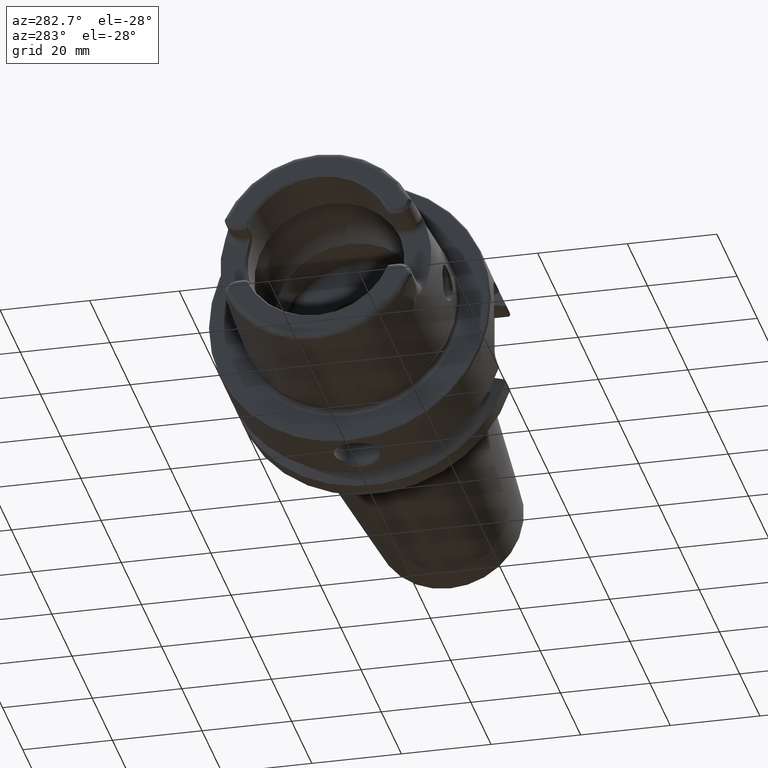
[diagram: clean part render]
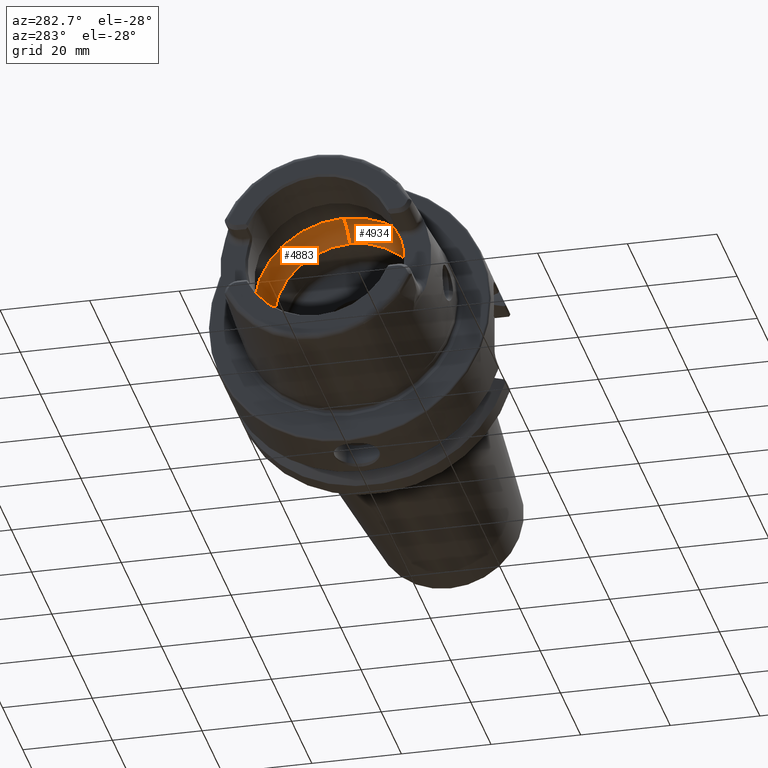
[diagram: same view with one multi-face feature highlighted, each face labeled with its STEP entity id]
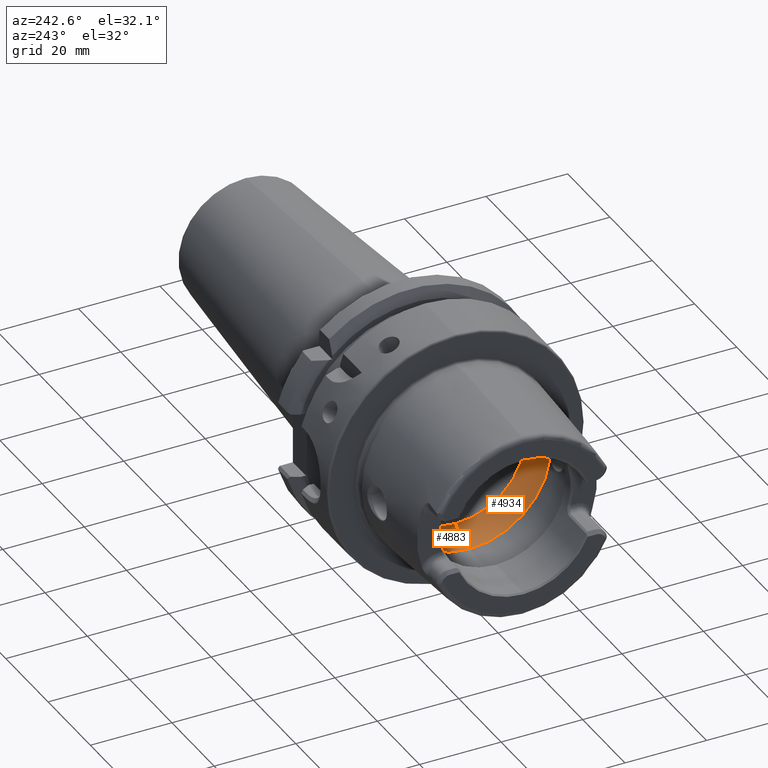
[diagram: same view with one multi-face feature highlighted, each face labeled with its STEP entity id]
A machine part, auxiliary view. The highlighted faces form ONE feature: a constant-radius fillet chain: 2 tangent blend faces with common blend radius 8.2014 mm. The faces share edges in the B-rep.
A second angle (auxiliary view) of the same feature is appended — it is thin or edge-on in the first view.
Their STEP definitions:
[1] entity #4934 (Torus):
#267=CARTESIAN_POINT('',(9.100685570619E-2,0.E0,0.E0));
#268=DIRECTION('',(1.E0,0.E0,0.E0));
#269=DIRECTION('',(0.E0,0.E0,1.E0));
#270=AXIS2_PLACEMENT_3D('',#267,#268,#269);
#1745=CARTESIAN_POINT('',(-6.25E0,-1.983683432405E1,-2.549509756796E0));
#1747=CARTESIAN_POINT('',(-6.25E0,-1.983683432405E1,2.549509756796E0));
#1763=CARTESIAN_POINT('',(-6.25E0,0.E0,0.E0));
#1764=DIRECTION('',(1.E0,0.E0,0.E0));
#1765=DIRECTION('',(0.E0,0.E0,1.E0));
#1766=AXIS2_PLACEMENT_3D('',#1763,#1764,#1765);
#1776=CARTESIAN_POINT('',(-6.25E0,0.E0,0.E0));
#1777=DIRECTION('',(1.E0,0.E0,0.E0));
#1778=DIRECTION('',(0.E0,-9.918417211620E-1,-1.274754884772E-1));
#1779=AXIS2_PLACEMENT_3D('',#1776,#1777,#1778);
#1781=CARTESIAN_POINT('',(-6.25E0,-1.983683432405E1,-2.549509756796E0));
#1782=CARTESIAN_POINT('',(-6.101283299350E0,-1.985745106764E1,
-2.389098161705E0));
#1783=CARTESIAN_POINT('',(-5.823011759718E0,-1.989111915045E1,
-2.033654081724E0));
#1784=CARTESIAN_POINT('',(-5.488290434370E0,-1.992204764600E1,
-1.383194941896E0));
#1785=CARTESIAN_POINT('',(-5.289411510405E0,-1.993633365189E1,
-6.797937079503E-1));
#1786=CARTESIAN_POINT('',(-5.25E0,-1.993880636712E1,-2.232966073821E-1));
#1787=CARTESIAN_POINT('',(-5.25E0,-1.993880636712E1,-1.256780224004E-14));
#1789=CARTESIAN_POINT('',(-6.25E0,0.E0,-1.179860506927E1));
#1790=DIRECTION('',(0.E0,1.E0,0.E0));
#1791=DIRECTION('',(7.731620031199E-1,0.E0,-6.342085752586E-1));
#1792=AXIS2_PLACEMENT_3D('',#1789,#1790,#1791);
#1794=CARTESIAN_POINT('',(-6.25E0,0.E0,1.179860506927E1));
#1795=DIRECTION('',(0.E0,-1.E0,0.E0));
#1796=DIRECTION('',(7.731620031199E-1,0.E0,6.342085752586E-1));
#1797=AXIS2_PLACEMENT_3D('',#1794,#1795,#1796);
#1799=CARTESIAN_POINT('',(-5.25E0,-1.993880636712E1,-1.256780224004E-14));
#1800=CARTESIAN_POINT('',(-5.25E0,-1.993880636712E1,2.265312399457E-1));
#1801=CARTESIAN_POINT('',(-5.290704077549E0,-1.993625163992E1,
6.873696590481E-1));
#1802=CARTESIAN_POINT('',(-5.490534556484E0,-1.992186156005E1,
1.388204097733E0));
#1803=CARTESIAN_POINT('',(-5.824328578687E0,-1.989096611667E1,
2.035393791106E0));
#1804=CARTESIAN_POINT('',(-6.101748857213E0,-1.985738652689E1,
2.389600330454E0));
#1805=CARTESIAN_POINT('',(-6.25E0,-1.983683432405E1,2.549509756796E0));
#2541=CARTESIAN_POINT('',(9.100685570619E-2,0.E0,-1.7E1));
#2542=CARTESIAN_POINT('',(9.100685570619E-2,0.E0,1.7E1));
#2543=VERTEX_POINT('',#2541);
#2544=VERTEX_POINT('',#2542);
#2545=CARTESIAN_POINT('',(-6.25E0,0.E0,-1.99999999E1));
#2546=VERTEX_POINT('',#2545);
#2547=CARTESIAN_POINT('',(-6.25E0,0.E0,1.99999999E1));
#2548=VERTEX_POINT('',#2547);
#2840=VERTEX_POINT('',#1745);
#2841=VERTEX_POINT('',#1747);
#2843=VERTEX_POINT('',#1787);
#4920=CARTESIAN_POINT('',(-6.25E0,0.E0,0.E0));
#4921=DIRECTION('',(1.E0,0.E0,0.E0));
#4922=DIRECTION('',(0.E0,0.E0,1.E0));
#4923=AXIS2_PLACEMENT_3D('',#4920,#4921,#4922);
#4924=TOROIDAL_SURFACE('',#4923,1.179860506927E1,8.201394830732E0);
#4925=ORIENTED_EDGE('',*,*,#4859,.F.);
#4926=ORIENTED_EDGE('',*,*,#4915,.T.);
#4927=ORIENTED_EDGE('',*,*,#4877,.F.);
#4928=ORIENTED_EDGE('',*,*,#3221,.F.);
#4929=ORIENTED_EDGE('',*,*,#4874,.T.);
#4930=ORIENTED_EDGE('',*,*,#4909,.T.);
#4931=ORIENTED_EDGE('',*,*,#4799,.F.);
#4932=EDGE_LOOP('',(#4925,#4926,#4927,#4928,#4929,#4930,#4931));
#4933=FACE_OUTER_BOUND('',#4932,.F.);
#4934=ADVANCED_FACE('',(#4933),#4924,.F.);
#271=CIRCLE('',#270,1.7E1);
#1767=CIRCLE('',#1766,1.99999999E1);
#1780=CIRCLE('',#1779,1.99999999E1);
#1788=B_SPLINE_CURVE_WITH_KNOTS('',3,(#1781,#1782,#1783,#1784,#1785,#1786,
#1787),.UNSPECIFIED.,.F.,.F.,(4,1,1,1,4),(0.E0,2.5E-1,5.E-1,7.5E-1,1.E0),
.UNSPECIFIED.);
#1793=CIRCLE('',#1792,8.201394830732E0);
#1798=CIRCLE('',#1797,8.201394830732E0);
#1806=B_SPLINE_CURVE_WITH_KNOTS('',3,(#1799,#1800,#1801,#1802,#1803,#1804,
#1805),.UNSPECIFIED.,.F.,.F.,(4,1,1,1,4),(0.E0,2.5E-1,5.E-1,7.5E-1,1.E0),
.UNSPECIFIED.);
#3221=EDGE_CURVE('',#2544,#2543,#271,.T.);
#4799=EDGE_CURVE('',#2843,#2841,#1806,.T.);
#4859=EDGE_CURVE('',#2840,#2843,#1788,.T.);
#4874=EDGE_CURVE('',#2544,#2548,#1798,.T.);
#4877=EDGE_CURVE('',#2543,#2546,#1793,.T.);
#4909=EDGE_CURVE('',#2548,#2841,#1767,.T.);
#4915=EDGE_CURVE('',#2840,#2546,#1780,.T.);
[2] entity #4883 (Torus):
#191=CARTESIAN_POINT('',(9.100685570619E-2,0.E0,0.E0));
#192=DIRECTION('',(1.E0,0.E0,0.E0));
#193=DIRECTION('',(0.E0,0.E0,-1.E0));
#194=AXIS2_PLACEMENT_3D('',#191,#192,#193);
#1673=CARTESIAN_POINT('',(-5.25E0,1.993880636712E1,0.E0));
#1674=CARTESIAN_POINT('',(-5.25E0,1.993880636712E1,-2.232966073821E-1));
#1675=CARTESIAN_POINT('',(-5.289411510405E0,1.993633365189E1,
-6.797937079503E-1));
#1676=CARTESIAN_POINT('',(-5.488290434370E0,1.992204764600E1,
-1.383194941896E0));
#1677=CARTESIAN_POINT('',(-5.823011759718E0,1.989111915045E1,
-2.033654081724E0));
#1678=CARTESIAN_POINT('',(-6.101283299350E0,1.985745106764E1,
-2.389098161705E0));
#1679=CARTESIAN_POINT('',(-6.25E0,1.983683432405E1,-2.549509756796E0));
#1681=CARTESIAN_POINT('',(-6.25E0,1.983683432405E1,2.549509756796E0));
#1682=CARTESIAN_POINT('',(-6.101748857213E0,1.985738652689E1,2.389600330454E0));
#1683=CARTESIAN_POINT('',(-5.824328578687E0,1.989096611667E1,2.035393791106E0));
#1684=CARTESIAN_POINT('',(-5.490534556484E0,1.992186156005E1,1.388204097733E0));
#1685=CARTESIAN_POINT('',(-5.290704077549E0,1.993625163992E1,
6.873696590481E-1));
#1686=CARTESIAN_POINT('',(-5.25E0,1.993880636712E1,2.265312399457E-1));
#1687=CARTESIAN_POINT('',(-5.25E0,1.993880636712E1,0.E0));
#1689=CARTESIAN_POINT('',(-6.25E0,1.983683432405E1,-2.549509756796E0));
#1705=CARTESIAN_POINT('',(-6.25E0,0.E0,0.E0));
#1706=DIRECTION('',(1.E0,0.E0,0.E0));
#1707=DIRECTION('',(0.E0,0.E0,-1.E0));
#1708=AXIS2_PLACEMENT_3D('',#1705,#1706,#1707);
#1710=CARTESIAN_POINT('',(-6.25E0,0.E0,0.E0));
#1711=DIRECTION('',(1.E0,0.E0,0.E0));
#1712=DIRECTION('',(0.E0,9.918417211620E-1,1.274754884772E-1));
#1713=AXIS2_PLACEMENT_3D('',#1710,#1711,#1712);
#1729=CARTESIAN_POINT('',(-6.25E0,1.983683432405E1,2.549509756796E0));
#1789=CARTESIAN_POINT('',(-6.25E0,0.E0,-1.179860506927E1));
#1790=DIRECTION('',(0.E0,1.E0,0.E0));
#1791=DIRECTION('',(7.731620031199E-1,0.E0,-6.342085752586E-1));
#1792=AXIS2_PLACEMENT_3D('',#1789,#1790,#1791);
#1794=CARTESIAN_POINT('',(-6.25E0,0.E0,1.179860506927E1));
#1795=DIRECTION('',(0.E0,-1.E0,0.E0));
#1796=DIRECTION('',(7.731620031199E-1,0.E0,6.342085752586E-1));
#1797=AXIS2_PLACEMENT_3D('',#1794,#1795,#1796);
#2541=CARTESIAN_POINT('',(9.100685570619E-2,0.E0,-1.7E1));
#2542=CARTESIAN_POINT('',(9.100685570619E-2,0.E0,1.7E1));
#2543=VERTEX_POINT('',#2541);
#2544=VERTEX_POINT('',#2542);
#2545=CARTESIAN_POINT('',(-6.25E0,0.E0,-1.99999999E1));
#2546=VERTEX_POINT('',#2545);
#2547=CARTESIAN_POINT('',(-6.25E0,0.E0,1.99999999E1));
#2548=VERTEX_POINT('',#2547);
#2836=VERTEX_POINT('',#1689);
#2838=VERTEX_POINT('',#1729);
#2842=VERTEX_POINT('',#1673);
#4865=CARTESIAN_POINT('',(-6.25E0,0.E0,0.E0));
#4866=DIRECTION('',(1.E0,0.E0,0.E0));
#4867=DIRECTION('',(0.E0,0.E0,1.E0));
#4868=AXIS2_PLACEMENT_3D('',#4865,#4866,#4867);
#4869=TOROIDAL_SURFACE('',#4868,1.179860506927E1,8.201394830732E0);
#4870=ORIENTED_EDGE('',*,*,#4842,.F.);
#4871=ORIENTED_EDGE('',*,*,#4784,.F.);
#4873=ORIENTED_EDGE('',*,*,#4872,.T.);
#4875=ORIENTED_EDGE('',*,*,#4874,.F.);
#4876=ORIENTED_EDGE('',*,*,#3174,.F.);
#4878=ORIENTED_EDGE('',*,*,#4877,.T.);
#4880=ORIENTED_EDGE('',*,*,#4879,.T.);
#4881=EDGE_LOOP('',(#4870,#4871,#4873,#4875,#4876,#4878,#4880));
#4882=FACE_OUTER_BOUND('',#4881,.F.);
#4883=ADVANCED_FACE('',(#4882),#4869,.F.);
#195=CIRCLE('',#194,1.7E1);
#1680=B_SPLINE_CURVE_WITH_KNOTS('',3,(#1673,#1674,#1675,#1676,#1677,#1678,
#1679),.UNSPECIFIED.,.F.,.F.,(4,1,1,1,4),(0.E0,2.5E-1,5.E-1,7.5E-1,1.E0),
.UNSPECIFIED.);
#1688=B_SPLINE_CURVE_WITH_KNOTS('',3,(#1681,#1682,#1683,#1684,#1685,#1686,
#1687),.UNSPECIFIED.,.F.,.F.,(4,1,1,1,4),(0.E0,2.5E-1,5.E-1,7.5E-1,1.E0),
.UNSPECIFIED.);
#1709=CIRCLE('',#1708,1.99999999E1);
#1714=CIRCLE('',#1713,1.99999999E1);
#1793=CIRCLE('',#1792,8.201394830732E0);
#1798=CIRCLE('',#1797,8.201394830732E0);
#3174=EDGE_CURVE('',#2543,#2544,#195,.T.);
#4784=EDGE_CURVE('',#2838,#2842,#1688,.T.);
#4842=EDGE_CURVE('',#2842,#2836,#1680,.T.);
#4872=EDGE_CURVE('',#2838,#2548,#1714,.T.);
#4874=EDGE_CURVE('',#2544,#2548,#1798,.T.);
#4877=EDGE_CURVE('',#2543,#2546,#1793,.T.);
#4879=EDGE_CURVE('',#2546,#2836,#1709,.T.);